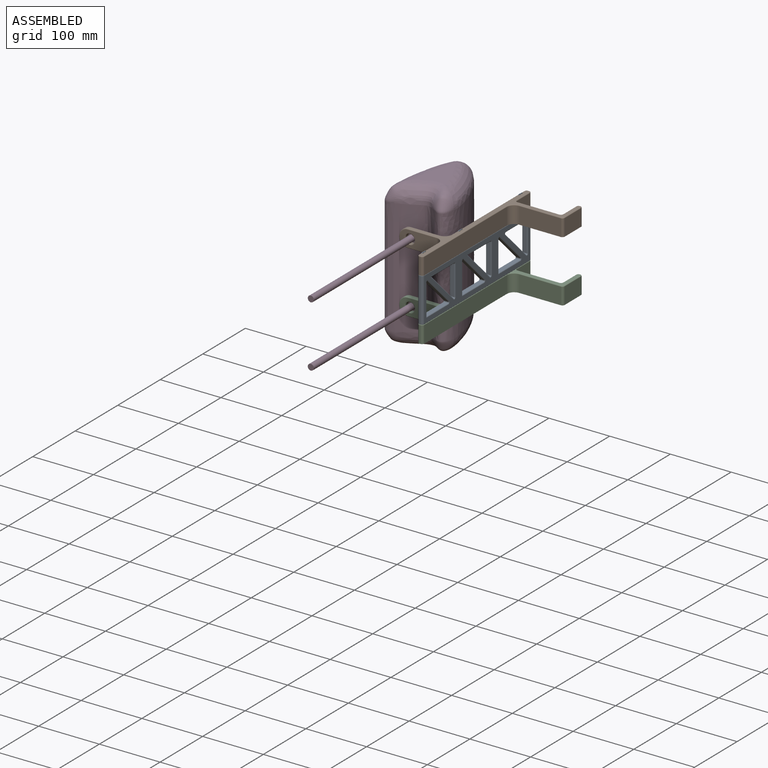
[diagram: assembled view]
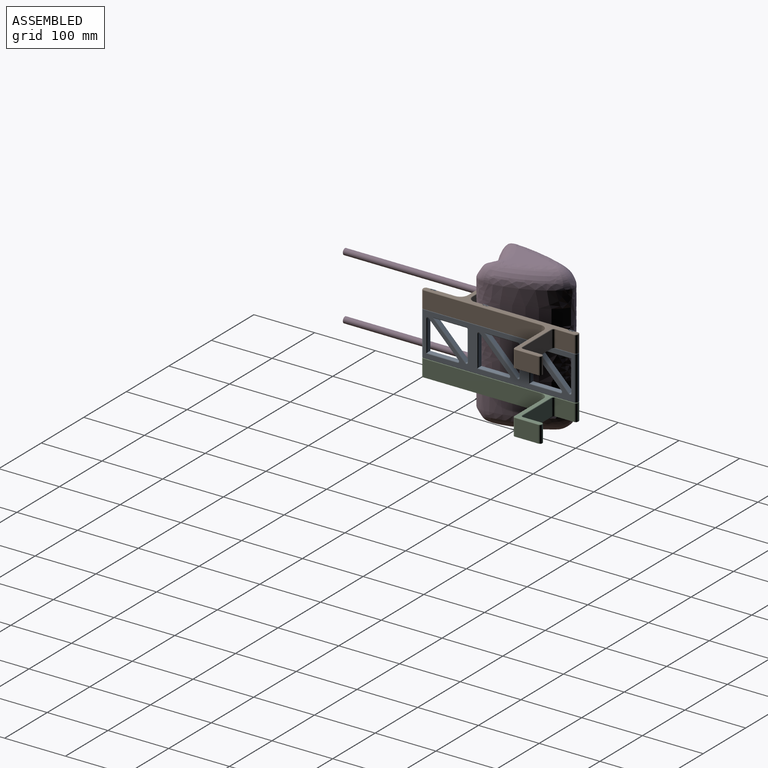
[diagram: assembled view, second angle]
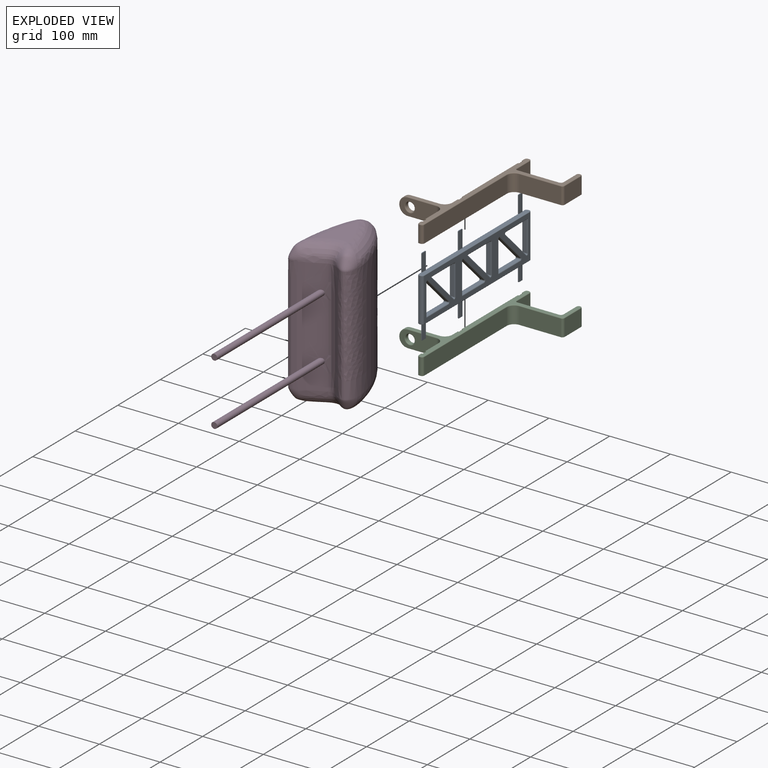
[diagram: exploded view]
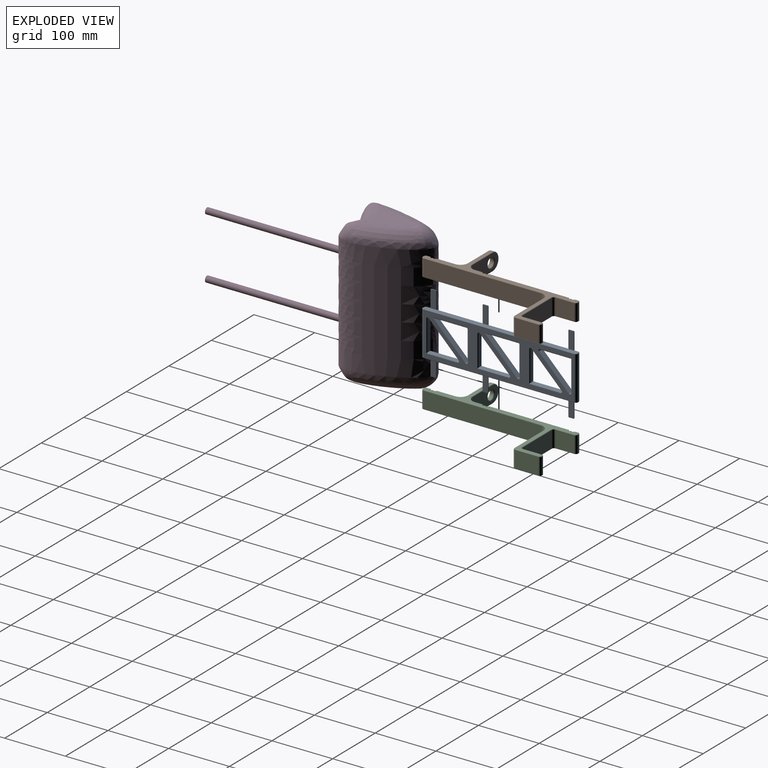
[diagram: exploded view, second angle]
ASSEMBLY  parts=4 mates=3
PART A: 157 faces, bbox 9.9x256.4x130.2 mm
  f0: plane 71.5x1.65mm, normal (0,1,0), area 118mm2, adj f48,f51,f58,f67
  f1: plane 248.16x130.18mm, normal (-1,0,0), area 8932.3mm2, adj f5,f6,f8,f9,f10,f11,f13,f14
  f2: plane 71.5x1.65mm, normal (0,-1,0), area 118mm2, adj f49,f50,f54,f63
  f3: plane 248.16x71.5mm, normal (1,0,0), area 7265.8mm2, adj f50,f51,f56,f65,f85,f86,f87,f88
  f4: plane 254.25x7.75mm, normal (0,0,1), area 1947.8mm2, adj f10,f11,f12,f18,f19,f20,f26,f27
  f5: plane 254.25x8.51mm, normal (0,0,-1), area 2006.3mm2, adj f1,f7,f8,f9,f15,f16,f17,f23
  f6: plane 7.62x1.27mm, normal (0,0,-1), area 9.7mm2, adj f1,f7,f81,f82
  f7: plane 28.58x9.14mm, normal (1,0,0), area 261mm2, adj f5,f6,f8,f9,f81,f82
  f8: plane 28.58x1.27mm, normal (0,-1,0), area 35.4mm2, adj f1,f5,f7,f72,f81
  f9: plane 28.58x1.27mm, normal (0,1,0), area 35.4mm2, adj f1,f5,f7,f69,f82
  f10: plane 28.58x1.27mm, normal (0,1,0), area 35.4mm2, adj f1,f4,f12,f60,f84
  f11: plane 28.58x1.27mm, normal (0,-1,0), area 35.4mm2, adj f1,f4,f12,f71,f83
  f12: plane 28.58x9.14mm, normal (1,0,0), area 261mm2, adj f4,f10,f11,f13,f83,f84
  f13: plane 7.62x1.27mm, normal (0,0,1), area 9.7mm2, adj f1,f12,f83,f84
  f14: plane 7.62x1.27mm, normal (0,0,-1), area 9.7mm2, adj f1,f15,f77,f78
  f15: plane 28.58x9.14mm, normal (1,0,0), area 261mm2, adj f5,f14,f16,f17,f77,f78
  f16: plane 28.58x1.27mm, normal (0,-1,0), area 35.4mm2, adj f1,f5,f15,f61,f77
  f17: plane 27.81x1.27mm, normal (0,1,0), area 35.3mm2, adj f1,f5,f15,f78
  f18: plane 28.58x1.27mm, normal (0,1,0), area 35.4mm2, adj f1,f4,f20,f70,f80
  f19: plane 28.58x1.27mm, normal (0,-1,0), area 35.4mm2, adj f1,f4,f20,f52,f79
  f20: plane 28.58x9.14mm, normal (1,0,0), area 261mm2, adj f4,f18,f19,f21,f79,f80
  f21: plane 7.62x1.27mm, normal (0,0,1), area 9.7mm2, adj f1,f20,f79,f80
  f22: plane 7.62x1.27mm, normal (0,0,-1), area 9.7mm2, adj f1,f23,f73,f74
  f23: plane 28.58x9.14mm, normal (1,0,0), area 261mm2, adj f5,f22,f24,f25,f73,f74
  f24: plane 27.81x1.27mm, normal (0,-1,0), area 35.3mm2, adj f1,f5,f23,f73
  f25: plane 28.58x1.27mm, normal (0,1,0), area 35.4mm2, adj f1,f5,f23,f72,f74
  f26: plane 28.58x1.27mm, normal (0,1,0), area 35.4mm2, adj f1,f4,f28,f71,f76
  f27: plane 28.58x1.27mm, normal (0,-1,0), area 35.4mm2, adj f1,f4,f28,f70,f75
  f28: plane 28.58x9.14mm, normal (1,0,0), area 261mm2, adj f4,f26,f27,f29,f75,f76
  f29: plane 7.62x1.27mm, normal (0,0,1), area 9.7mm2, adj f1,f28,f75,f76
  f30: plane 49.03x49.03mm, normal (0,0.71,0.71), area 431.5mm2, adj f147,f149,f152,f153
  f31: plane 50.55x6.22mm, normal (0,-1,0), area 314.6mm2, adj f32,f145,f149,f154
  f32: plane 50.55x6.22mm, normal (0,0,-1), area 314.6mm2, adj f31,f148,f153,f156
  f33: plane 50.55x6.22mm, normal (0,0,1), area 314.6mm2, adj f35,f136,f141,f144
  f34: plane 49.03x49.03mm, normal (0,-0.71,-0.71), area 431.5mm2, adj f135,f137,f140,f141
  f35: plane 50.55x6.22mm, normal (0,1,0), area 314.6mm2, adj f33,f133,f137,f142
  f36: plane 50.55x6.22mm, normal (0,0,1), area 314.6mm2, adj f38,f124,f129,f132
  f37: plane 49.03x49.03mm, normal (0,-0.71,-0.71), area 431.5mm2, adj f123,f125,f128,f129
  f38: plane 50.55x6.22mm, normal (0,1,0), area 314.6mm2, adj f36,f121,f125,f130
  f39: plane 51.63x51.63mm, normal (0,0.71,0.71), area 454.4mm2, adj f41,f112,f117,f120
  f40: plane 49.03x6.22mm, normal (0,-1,0), area 305.1mm2, adj f111,f113,f116,f117
  f41: plane 52.71x6.22mm, normal (0,0,-1), area 328mm2, adj f39,f109,f113,f118
  f42: plane 50.55x6.22mm, normal (0,0,1), area 314.6mm2, adj f44,f100,f105,f108
  f43: plane 49.03x49.03mm, normal (0,-0.71,-0.71), area 431.5mm2, adj f99,f101,f104,f105
  f44: plane 50.55x6.22mm, normal (0,1,0), area 314.6mm2, adj f42,f97,f101,f106
  f45: plane 51.63x51.63mm, normal (0,0.71,0.71), area 454.4mm2, adj f47,f88,f93,f96
  f46: plane 49.03x6.22mm, normal (0,-1,0), area 305.1mm2, adj f87,f89,f92,f93
  f47: plane 52.71x6.22mm, normal (0,0,-1), area 328mm2, adj f45,f85,f89,f94
  f48: cylinder r=3.81mm len=71.5mm, axis (0,0,1), area 427.9mm2, adj f0,f1,f59,f68
  f49: cylinder r=3.81mm len=71.5mm, axis (0,0,-1), area 427.9mm2, adj f1,f2,f53,f62
  f50: cylinder r=3.81mm len=71.5mm, axis (0,0,1), area 427.9mm2, adj f2,f3,f55,f64
  f51: cylinder r=3.81mm len=71.5mm, axis (0,0,-1), area 427.9mm2, adj f0,f3,f57,f66
  f52: cylinder r=0.76mm len=5.89mm, axis (0,1,0), area 7.1mm2, adj f1,f4,f19,f53
  f53: torus R=3.05mm, axis (0,0,1), area 6.6mm2, adj f4,f49,f52,f54
  f54: cylinder r=0.76mm len=1.65mm, axis (-1,0,0), area 2mm2, adj f2,f4,f53,f55
  f55: torus R=3.05mm, axis (0,0,1), area 6.6mm2, adj f4,f50,f54,f56
  f56: cylinder r=0.76mm len=248.16mm, axis (0,-1,0), area 297mm2, adj f3,f4,f55,f57
  f57: torus R=3.05mm, axis (0,0,1), area 6.6mm2, adj f4,f51,f56,f58
  f58: cylinder r=0.76mm len=1.65mm, axis (1,0,0), area 2mm2, adj f0,f4,f57,f59
  f59: torus R=3.05mm, axis (0,0,1), area 6.6mm2, adj f4,f48,f58,f60
  f60: cylinder r=0.76mm len=5.89mm, axis (0,1,0), area 7.1mm2, adj f1,f4,f10,f59
  f61: cylinder r=0.76mm len=5.89mm, axis (0,-1,0), area 7.1mm2, adj f1,f5,f16,f62
  f62: torus R=3.05mm, axis (0,0,1), area 6.6mm2, adj f5,f49,f61,f63
  f63: cylinder r=0.76mm len=1.65mm, axis (1,0,0), area 2mm2, adj f2,f5,f62,f64
  f64: torus R=3.05mm, axis (0,0,1), area 6.6mm2, adj f5,f50,f63,f65
  f65: cylinder r=0.76mm len=248.16mm, axis (0,1,0), area 297mm2, adj f3,f5,f64,f66
  f66: torus R=3.05mm, axis (0,0,1), area 6.6mm2, adj f5,f51,f65,f67
  f67: cylinder r=0.76mm len=1.65mm, axis (-1,0,0), area 2mm2, adj f0,f5,f66,f68
  f68: torus R=3.05mm, axis (0,0,1), area 6.6mm2, adj f5,f48,f67,f69
  f69: cylinder r=0.76mm len=5.89mm, axis (0,-1,0), area 7.1mm2, adj f1,f5,f9,f68
  f70: cylinder r=0.76mm len=76.73mm, axis (0,1,0), area 91.8mm2, adj f1,f4,f18,f27
  f71: cylinder r=0.76mm len=132.21mm, axis (0,1,0), area 158.2mm2, adj f1,f4,f11,f26
  f72: cylinder r=0.76mm len=132.21mm, axis (0,-1,0), area 158.2mm2, adj f1,f5,f8,f25
  f73: cylinder r=0.76mm len=1.27mm, axis (1,0,0), area 1.5mm2, adj f1,f22,f23,f24
  f74: cylinder r=0.76mm len=1.27mm, axis (-1,0,0), area 1.5mm2, adj f1,f22,f23,f25
  f75: cylinder r=0.76mm len=1.27mm, axis (-1,0,0), area 1.5mm2, adj f1,f27,f28,f29
  f76: cylinder r=0.76mm len=1.27mm, axis (1,0,0), area 1.5mm2, adj f1,f26,f28,f29
  f77: cylinder r=0.76mm len=1.27mm, axis (1,0,0), area 1.5mm2, adj f1,f14,f15,f16
  f78: cylinder r=0.76mm len=1.27mm, axis (-1,0,0), area 1.5mm2, adj f1,f14,f15,f17
  f79: cylinder r=0.76mm len=1.27mm, axis (-1,0,0), area 1.5mm2, adj f1,f19,f20,f21
  f80: cylinder r=0.76mm len=1.27mm, axis (1,0,0), area 1.5mm2, adj f1,f18,f20,f21
  f81: cylinder r=0.76mm len=1.27mm, axis (1,0,0), area 1.5mm2, adj f1,f6,f7,f8
  f82: cylinder r=0.76mm len=1.27mm, axis (-1,0,0), area 1.5mm2, adj f1,f6,f7,f9
  f83: cylinder r=0.76mm len=1.27mm, axis (-1,0,0), area 1.5mm2, adj f1,f11,f12,f13
  f84: cylinder r=0.76mm len=1.27mm, axis (1,0,0), area 1.5mm2, adj f1,f10,f12,f13
  f85: cylinder r=1.52mm len=56.38mm, axis (0,1,0), area 129.4mm2, adj f3,f47,f86,f88
  f86: torus R=3.05mm, axis (1,0,0), area 7.8mm2, adj f3,f85,f87,f89
  f87: cylinder r=1.52mm len=49.03mm, axis (0,0,-1), area 117.4mm2, adj f3,f46,f86,f90
  f88: cylinder r=1.52mm len=55.31mm, axis (0,-0.71,0.71), area 178mm2, adj f3,f45,f85,f90
  f89: cylinder r=1.52mm len=6.22mm, axis (-1,0,0), area 14.9mm2, adj f46,f47,f86,f91
  f90: torus R=3.05mm, axis (1,0,0), area 11.7mm2, adj f3,f87,f88,f93
  f91: torus R=3.05mm, axis (1,0,0), area 7.8mm2, adj f1,f89,f92,f94
  f92: cylinder r=1.52mm len=49.03mm, axis (0,0,1), area 117.4mm2, adj f1,f46,f91,f95
  f93: cylinder r=1.52mm len=6.22mm, axis (-1,0,0), area 22.3mm2, adj f45,f46,f90,f95
  f94: cylinder r=1.52mm len=56.38mm, axis (0,-1,0), area 129.4mm2, adj f1,f47,f91,f96
  f95: torus R=3.05mm, axis (1,0,0), area 11.7mm2, adj f1,f92,f93,f96
  f96: cylinder r=1.52mm len=55.31mm, axis (0,0.71,-0.71), area 178mm2, adj f1,f45,f94,f95
  f97: cylinder r=1.52mm len=52.07mm, axis (0,0,1), area 122.3mm2, adj f3,f44,f98,f100
  f98: torus R=3.05mm, axis (1,0,0), area 11.7mm2, adj f3,f97,f99,f101
  f99: cylinder r=1.52mm len=50.1mm, axis (0,0.71,-0.71), area 166mm2, adj f3,f43,f98,f102
  f100: cylinder r=1.52mm len=52.07mm, axis (0,-1,0), area 122.3mm2, adj f3,f42,f97,f102
  f101: cylinder r=1.52mm len=6.22mm, axis (-1,0,0), area 22.3mm2, adj f43,f44,f98,f103
  f102: torus R=3.05mm, axis (1,0,0), area 11.7mm2, adj f3,f99,f100,f105
  f103: torus R=3.05mm, axis (1,0,0), area 11.7mm2, adj f1,f101,f104,f106
  f104: cylinder r=1.52mm len=50.1mm, axis (0,-0.71,0.71), area 166mm2, adj f1,f43,f103,f107
  f105: cylinder r=1.52mm len=6.22mm, axis (-1,0,0), area 22.3mm2, adj f42,f43,f102,f107
  f106: cylinder r=1.52mm len=52.07mm, axis (0,0,-1), area 122.3mm2, adj f1,f44,f103,f108
  f107: torus R=3.05mm, axis (1,0,0), area 11.7mm2, adj f1,f104,f105,f108
  f108: cylinder r=1.52mm len=52.07mm, axis (0,1,0), area 122.3mm2, adj f1,f42,f106,f107
  f109: cylinder r=1.52mm len=56.38mm, axis (0,1,0), area 129.4mm2, adj f3,f41,f110,f112
  f110: torus R=3.05mm, axis (1,0,0), area 7.8mm2, adj f3,f109,f111,f113
  f111: cylinder r=1.52mm len=49.03mm, axis (0,0,-1), area 117.4mm2, adj f3,f40,f110,f114
  f112: cylinder r=1.52mm len=55.31mm, axis (0,-0.71,0.71), area 178mm2, adj f3,f39,f109,f114
  f113: cylinder r=1.52mm len=6.22mm, axis (-1,0,0), area 14.9mm2, adj f40,f41,f110,f115
  f114: torus R=3.05mm, axis (1,0,0), area 11.7mm2, adj f3,f111,f112,f117
  f115: torus R=3.05mm, axis (1,0,0), area 7.8mm2, adj f1,f113,f116,f118
  f116: cylinder r=1.52mm len=49.03mm, axis (0,0,1), area 117.4mm2, adj f1,f40,f115,f119
  f117: cylinder r=1.52mm len=6.22mm, axis (-1,0,0), area 22.3mm2, adj f39,f40,f114,f119
  f118: cylinder r=1.52mm len=56.38mm, axis (0,-1,0), area 129.4mm2, adj f1,f41,f115,f120
  f119: torus R=3.05mm, axis (1,0,0), area 11.7mm2, adj f1,f116,f117,f120
  f120: cylinder r=1.52mm len=55.31mm, axis (0,0.71,-0.71), area 178mm2, adj f1,f39,f118,f119
  f121: cylinder r=1.52mm len=52.07mm, axis (0,0,1), area 122.3mm2, adj f3,f38,f122,f124
  f122: torus R=3.05mm, axis (1,0,0), area 11.7mm2, adj f3,f121,f123,f125
  f123: cylinder r=1.52mm len=50.1mm, axis (0,0.71,-0.71), area 166mm2, adj f3,f37,f122,f126
  f124: cylinder r=1.52mm len=52.07mm, axis (0,-1,0), area 122.3mm2, adj f3,f36,f121,f126
  f125: cylinder r=1.52mm len=6.22mm, axis (-1,0,0), area 22.3mm2, adj f37,f38,f122,f127
  f126: torus R=3.05mm, axis (1,0,0), area 11.7mm2, adj f3,f123,f124,f129
  f127: torus R=3.05mm, axis (1,0,0), area 11.7mm2, adj f1,f125,f128,f130
  f128: cylinder r=1.52mm len=50.1mm, axis (0,-0.71,0.71), area 166mm2, adj f1,f37,f127,f131
  f129: cylinder r=1.52mm len=6.22mm, axis (-1,0,0), area 22.3mm2, adj f36,f37,f126,f131
  f130: cylinder r=1.52mm len=52.07mm, axis (0,0,-1), area 122.3mm2, adj f1,f38,f127,f132
  f131: torus R=3.05mm, axis (1,0,0), area 11.7mm2, adj f1,f128,f129,f132
  f132: cylinder r=1.52mm len=52.07mm, axis (0,1,0), area 122.3mm2, adj f1,f36,f130,f131
  f133: cylinder r=1.52mm len=52.07mm, axis (0,0,1), area 122.3mm2, adj f3,f35,f134,f136
  f134: torus R=3.05mm, axis (1,0,0), area 11.7mm2, adj f3,f133,f135,f137
  f135: cylinder r=1.52mm len=50.1mm, axis (0,0.71,-0.71), area 166mm2, adj f3,f34,f134,f138
  f136: cylinder r=1.52mm len=52.07mm, axis (0,-1,0), area 122.3mm2, adj f3,f33,f133,f138
  f137: cylinder r=1.52mm len=6.22mm, axis (-1,0,0), area 22.3mm2, adj f34,f35,f134,f139
  f138: torus R=3.05mm, axis (1,0,0), area 11.7mm2, adj f3,f135,f136,f141
  f139: torus R=3.05mm, axis (1,0,0), area 11.7mm2, adj f1,f137,f140,f142
  f140: cylinder r=1.52mm len=50.1mm, axis (0,-0.71,0.71), area 166mm2, adj f1,f34,f139,f143
  f141: cylinder r=1.52mm len=6.22mm, axis (-1,0,0), area 22.3mm2, adj f33,f34,f138,f143
  f142: cylinder r=1.52mm len=52.07mm, axis (0,0,-1), area 122.3mm2, adj f1,f35,f139,f144
  f143: torus R=3.05mm, axis (1,0,0), area 11.7mm2, adj f1,f140,f141,f144
  f144: cylinder r=1.52mm len=52.07mm, axis (0,1,0), area 122.3mm2, adj f1,f33,f142,f143
  f145: cylinder r=1.52mm len=52.07mm, axis (0,0,-1), area 122.3mm2, adj f3,f31,f146,f148
  f146: torus R=3.05mm, axis (1,0,0), area 11.7mm2, adj f3,f145,f147,f149
  f147: cylinder r=1.52mm len=50.1mm, axis (0,-0.71,0.71), area 166mm2, adj f3,f30,f146,f150
  f148: cylinder r=1.52mm len=52.07mm, axis (0,1,0), area 122.3mm2, adj f3,f32,f145,f150
  f149: cylinder r=1.52mm len=6.22mm, axis (-1,0,0), area 22.3mm2, adj f30,f31,f146,f151
  f150: torus R=3.05mm, axis (1,0,0), area 11.7mm2, adj f3,f147,f148,f153
  f151: torus R=3.05mm, axis (1,0,0), area 11.7mm2, adj f1,f149,f152,f154
  f152: cylinder r=1.52mm len=50.1mm, axis (0,0.71,-0.71), area 166mm2, adj f1,f30,f151,f155
  f153: cylinder r=1.52mm len=6.22mm, axis (-1,0,0), area 22.3mm2, adj f30,f32,f150,f155
  f154: cylinder r=1.52mm len=52.07mm, axis (0,0,1), area 122.3mm2, adj f1,f31,f151,f156
  f155: torus R=3.05mm, axis (1,0,0), area 11.7mm2, adj f1,f152,f153,f156
  f156: cylinder r=1.52mm len=52.07mm, axis (0,-1,0), area 122.3mm2, adj f1,f32,f154,f155
PART B: 118 faces, bbox 168.2x30.9x256.4 mm
  f0: plane 27.56x5.72mm, normal (-1,0,0), area 157.5mm2, adj f4,f36,f53,f79
  f1: plane 131.83x27.56mm, normal (-1,0,0), area 3633mm2, adj f4,f29,f37,f71
  f2: plane 27.56x5.72mm, normal (-1,0,0), area 157.5mm2, adj f4,f23,f46,f99
  f3: plane 253.75x151.46mm, normal (0,-1,0), area 2966.1mm2, adj f20,f61,f62,f63,f64,f65,f66,f67
  f4: plane 255.78x152.48mm, normal (0,1,0), area 3667.1mm2, adj f0,f1,f2,f5,f6,f7,f8,f9
  f5: plane 38.48x27.56mm, normal (1,0,0), area 1060.5mm2, adj f4,f48,f54,f91
  f6: plane 27.56x0.38mm, normal (0,0,1), area 10.5mm2, adj f4,f48,f49,f89
  f7: plane 30.48x27.56mm, normal (-1,0,0), area 840mm2, adj f4,f49,f50,f87
  f8: plane 68.58x27.56mm, normal (0,0,1), area 1890mm2, adj f4,f50,f51,f85
  f9: plane 30.48x27.56mm, normal (1,0,0), area 840mm2, adj f4,f51,f52,f83
  f10: plane 27.56x1.65mm, normal (0,0,1), area 45.5mm2, adj f4,f52,f53,f81
  f11: plane 26.54x13.4mm, normal (-1,0,0), area 355.7mm2, adj f30,f43,f55,f63
  f12: plane 60.26x26.54mm, normal (0,0,1), area 1268.7mm2, adj f43,f57,f58,f59,f60,f61,f117
  f13: plane 5.97x0.03mm, normal (-1,0,0), area 0.2mm2, adj f19,f20,f59,f111
  f14: plane 60.26x26.54mm, normal (0,0,-1), area 1268.7mm2, adj f44,f109,f110,f111,f112,f113,f116
  f15: plane 30.93x26.54mm, normal (-1,0,0), area 820.9mm2, adj f22,f44,f107,f115
  f16: plane 27.56x1.65mm, normal (0,0,-1), area 45.5mm2, adj f4,f46,f47,f97
  f17: plane 193.87x27.56mm, normal (1,0,0), area 5342.8mm2, adj f4,f45,f47,f95
  f18: plane 68.39x27.56mm, normal (0,0,-1), area 1884.8mm2, adj f4,f45,f54,f93
  f19: cylinder r=14.27mm len=14.28mm, axis (0,0,-1), area 133.8mm2, adj f4,f13,f58,f112
  f20: cylinder r=14.27mm len=14.28mm, axis (0,0,1), area 133.8mm2, adj f3,f13,f60,f110
  f21: cylinder r=7.49mm len=14.99mm, axis (0,0,1), area 233.2mm2, adj f116,f117
  f22: plane 27.56x1.27mm, normal (0,0,-1), area 34.8mm2, adj f4,f15,f28,f106,f115
  f23: plane 27.56x1.27mm, normal (0,0,1), area 35mm2, adj f2,f4,f24,f100
  f24: plane 27.56x1.27mm, normal (-1,0,0), area 35mm2, adj f4,f23,f25,f101
  f25: cylinder r=1.27mm len=27.56mm, axis (0,-1,0), area 110mm2, adj f4,f24,f26,f102
  f26: plane 27.56x1.91mm, normal (-1,0,0), area 52.5mm2, adj f4,f25,f27,f103
  f27: cylinder r=1.27mm len=27.56mm, axis (0,-1,0), area 110mm2, adj f4,f26,f28,f104
  f28: plane 27.56x1.27mm, normal (-1,0,0), area 35mm2, adj f4,f22,f27,f105
  f29: plane 27.56x1.27mm, normal (0,0,-1), area 35mm2, adj f1,f4,f35,f70
  f30: plane 27.56x1.27mm, normal (0,0,1), area 34.8mm2, adj f4,f11,f31,f55,f64
  f31: plane 27.56x1.27mm, normal (-1,0,0), area 35mm2, adj f4,f30,f32,f65
  f32: cylinder r=1.27mm len=27.56mm, axis (0,-1,0), area 110mm2, adj f4,f31,f33,f66
  f33: plane 27.56x1.91mm, normal (-1,0,0), area 52.5mm2, adj f4,f32,f34,f67
  f34: cylinder r=1.27mm len=27.56mm, axis (0,-1,0), area 110mm2, adj f4,f33,f35,f68
  f35: plane 27.56x1.27mm, normal (-1,0,0), area 35mm2, adj f4,f29,f34,f69
  f36: plane 27.56x1.27mm, normal (0,0,-1), area 35mm2, adj f0,f4,f42,f78
  f37: plane 27.56x1.27mm, normal (0,0,1), area 35mm2, adj f1,f4,f38,f72
  f38: plane 27.56x1.27mm, normal (-1,0,0), area 35mm2, adj f4,f37,f39,f73
  f39: cylinder r=1.27mm len=27.56mm, axis (0,-1,0), area 110mm2, adj f4,f38,f40,f74
  f40: plane 27.56x1.91mm, normal (-1,0,0), area 52.5mm2, adj f4,f39,f41,f75
  f41: cylinder r=1.27mm len=27.56mm, axis (0,-1,0), area 110mm2, adj f4,f40,f42,f76
  f42: plane 27.56x1.27mm, normal (-1,0,0), area 35mm2, adj f4,f36,f41,f77
  f43: cylinder r=12mm len=26.54mm, axis (0,-1,0), area 500.3mm2, adj f11,f12,f56,f62
  f44: cylinder r=12mm len=26.54mm, axis (0,1,0), area 500.3mm2, adj f14,f15,f108,f114
  f45: cylinder r=12mm len=27.56mm, axis (0,1,0), area 519.5mm2, adj f4,f17,f18,f94
  f46: cylinder r=3.81mm len=27.56mm, axis (0,1,0), area 164.9mm2, adj f2,f4,f16,f98
  f47: cylinder r=3.81mm len=27.56mm, axis (0,-1,0), area 164.9mm2, adj f4,f16,f17,f96
  f48: cylinder r=3.81mm len=27.56mm, axis (0,1,0), area 164.9mm2, adj f4,f5,f6,f90
  f49: cylinder r=3.81mm len=27.56mm, axis (0,1,0), area 164.9mm2, adj f4,f6,f7,f88
  f50: cylinder r=3.81mm len=27.56mm, axis (0,-1,0), area 164.9mm2, adj f4,f7,f8,f86
  f51: cylinder r=3.81mm len=27.56mm, axis (0,-1,0), area 164.9mm2, adj f4,f8,f9,f84
  f52: cylinder r=3.81mm len=27.56mm, axis (0,1,0), area 164.9mm2, adj f4,f9,f10,f82
  f53: cylinder r=3.81mm len=27.56mm, axis (0,-1,0), area 164.9mm2, adj f0,f4,f10,f80
  f54: cylinder r=3.81mm len=27.56mm, axis (0,1,0), area 164.9mm2, adj f4,f5,f18,f92
  f55: cylinder r=1.02mm len=13.4mm, axis (0,0,-1), area 21.4mm2, adj f4,f11,f30,f56
  f56: torus R=13.02mm, axis (0,-1,0), area 31mm2, adj f4,f43,f55,f57
  f57: cylinder r=1.02mm len=47mm, axis (-1,0,0), area 75mm2, adj f4,f12,f56,f58
  f58: torus R=13.26mm, axis (0,0,1), area 34.9mm2, adj f12,f19,f57,f59
  f59: cylinder r=1.02mm len=1.02mm, axis (0,-1,0), area 0mm2, adj f12,f13,f58,f60
  f60: torus R=13.26mm, axis (0,0,1), area 34.9mm2, adj f12,f20,f59,f61
  f61: cylinder r=1.02mm len=47mm, axis (1,0,0), area 75mm2, adj f3,f12,f60,f62
  f62: torus R=13.02mm, axis (0,-1,0), area 31mm2, adj f3,f43,f61,f63
  f63: cylinder r=1.02mm len=13.4mm, axis (0,0,1), area 20.8mm2, adj f3,f11,f62,f64
  f64: cylinder r=1.02mm len=2.29mm, axis (-1,0,0), area 2mm2, adj f3,f30,f63,f65
  f65: cylinder r=1.02mm len=2.29mm, axis (0,0,-1), area 2.1mm2, adj f3,f31,f64,f66
  f66: torus R=2.29mm, axis (0,-1,0), area 7mm2, adj f3,f32,f65,f67
  f67: cylinder r=1.02mm len=1.91mm, axis (0,0,-1), area 2.1mm2, adj f3,f33,f66,f68
  f68: torus R=2.29mm, axis (0,-1,0), area 7mm2, adj f3,f34,f67,f69
  f69: cylinder r=1.02mm len=2.29mm, axis (0,0,-1), area 2.1mm2, adj f3,f35,f68,f70
  f70: cylinder r=1.02mm len=2.29mm, axis (1,0,0), area 2mm2, adj f3,f29,f69,f71
  f71: cylinder r=1.02mm len=131.83mm, axis (0,0,1), area 209.2mm2, adj f1,f3,f70,f72
  f72: cylinder r=1.02mm len=2.29mm, axis (-1,0,0), area 2mm2, adj f3,f37,f71,f73
  f73: cylinder r=1.02mm len=2.29mm, axis (0,0,-1), area 2.1mm2, adj f3,f38,f72,f74
  f74: torus R=2.29mm, axis (0,-1,0), area 7mm2, adj f3,f39,f73,f75
  f75: cylinder r=1.02mm len=1.91mm, axis (0,0,-1), area 2.1mm2, adj f3,f40,f74,f76
  f76: torus R=2.29mm, axis (0,-1,0), area 7mm2, adj f3,f41,f75,f77
  f77: cylinder r=1.02mm len=2.29mm, axis (0,0,-1), area 2.1mm2, adj f3,f42,f76,f78
  f78: cylinder r=1.02mm len=2.29mm, axis (1,0,0), area 2mm2, adj f3,f36,f77,f79
  f79: cylinder r=1.02mm len=5.72mm, axis (0,0,1), area 8.5mm2, adj f0,f3,f78,f80
  f80: torus R=2.79mm, axis (0,-1,0), area 8.6mm2, adj f3,f53,f79,f81
  f81: cylinder r=1.02mm len=1.65mm, axis (1,0,0), area 2.6mm2, adj f3,f10,f80,f82
  f82: torus R=2.79mm, axis (0,-1,0), area 8.6mm2, adj f3,f52,f81,f83
  f83: cylinder r=1.02mm len=30.48mm, axis (0,0,-1), area 48.6mm2, adj f3,f9,f82,f84
  f84: torus R=4.83mm, axis (0,-1,0), area 10.5mm2, adj f3,f51,f83,f85
  f85: cylinder r=1.02mm len=68.58mm, axis (1,0,0), area 109.4mm2, adj f3,f8,f84,f86
  f86: torus R=4.83mm, axis (0,-1,0), area 10.5mm2, adj f3,f50,f85,f87
  f87: cylinder r=1.02mm len=30.48mm, axis (0,0,1), area 48.6mm2, adj f3,f7,f86,f88
  f88: torus R=2.79mm, axis (0,-1,0), area 8.6mm2, adj f3,f49,f87,f89
  f89: cylinder r=1.02mm len=1.02mm, axis (1,0,0), area 0.6mm2, adj f3,f6,f88,f90
  f90: torus R=2.79mm, axis (0,-1,0), area 8.6mm2, adj f3,f48,f89,f91
  f91: cylinder r=1.02mm len=38.48mm, axis (0,0,-1), area 61.4mm2, adj f3,f5,f90,f92
  f92: torus R=2.79mm, axis (0,-1,0), area 8.6mm2, adj f3,f54,f91,f93
  f93: cylinder r=1.02mm len=68.39mm, axis (-1,0,0), area 109.1mm2, adj f3,f18,f92,f94
  f94: torus R=13.02mm, axis (0,-1,0), area 31mm2, adj f3,f45,f93,f95
  f95: cylinder r=1.02mm len=193.87mm, axis (0,0,-1), area 309.4mm2, adj f3,f17,f94,f96
  f96: torus R=2.79mm, axis (0,-1,0), area 8.6mm2, adj f3,f47,f95,f97
  f97: cylinder r=1.02mm len=1.65mm, axis (-1,0,0), area 2.6mm2, adj f3,f16,f96,f98
  f98: torus R=2.79mm, axis (0,-1,0), area 8.6mm2, adj f3,f46,f97,f99
  f99: cylinder r=1.02mm len=5.72mm, axis (0,0,1), area 8.5mm2, adj f2,f3,f98,f100
  f100: cylinder r=1.02mm len=2.29mm, axis (-1,0,0), area 2mm2, adj f3,f23,f99,f101
  f101: cylinder r=1.02mm len=2.29mm, axis (0,0,-1), area 2.1mm2, adj f3,f24,f100,f102
  f102: torus R=2.29mm, axis (0,-1,0), area 7mm2, adj f3,f25,f101,f103
  f103: cylinder r=1.02mm len=1.91mm, axis (0,0,-1), area 2.1mm2, adj f3,f26,f102,f104
  f104: torus R=2.29mm, axis (0,-1,0), area 7mm2, adj f3,f27,f103,f105
  f105: cylinder r=1.02mm len=2.29mm, axis (0,0,-1), area 2.1mm2, adj f3,f28,f104,f106
  f106: cylinder r=1.02mm len=2.29mm, axis (1,0,0), area 2mm2, adj f3,f22,f105,f107
  f107: cylinder r=1.02mm len=30.93mm, axis (0,0,1), area 48.8mm2, adj f3,f15,f106,f108
  f108: torus R=13.02mm, axis (0,-1,0), area 31mm2, adj f3,f44,f107,f109
  f109: cylinder r=1.02mm len=47mm, axis (-1,0,0), area 75mm2, adj f3,f14,f108,f110
  f110: torus R=13.26mm, axis (0,0,-1), area 34.9mm2, adj f14,f20,f109,f111
  f111: cylinder r=1.02mm len=1.02mm, axis (0,-1,0), area 0mm2, adj f13,f14,f110,f112
  f112: torus R=13.26mm, axis (0,0,-1), area 34.9mm2, adj f14,f19,f111,f113
  f113: cylinder r=1.02mm len=47mm, axis (1,0,0), area 75mm2, adj f4,f14,f112,f114
  f114: torus R=13.02mm, axis (0,-1,0), area 31mm2, adj f4,f44,f113,f115
  f115: cylinder r=1.02mm len=30.93mm, axis (0,0,-1), area 49.4mm2, adj f4,f15,f22,f114
  f116: torus R=9.02mm, axis (0,0,-1), area 121mm2, adj f14,f21
  f117: torus R=9.02mm, axis (0,0,1), area 121mm2, adj f12,f21
PART C: same geometry as B
PART D: 19 faces, bbox 375.3x98.7x241.3 mm
  f0: extruded ~190.5x139.87mm, area 75639.7mm2, adj f3,f5,f7,f8,f9,f10,f11,f12
  f1: plane 76.33x45.97mm, normal (0,0,1), area 1817.9mm2, adj f13,f16,f17
  f2: plane 76.33x45.96mm, normal (0,0,-1), area 1817.9mm2, adj f7,f10,f11
  f3: cylinder r=5.02mm len=250.19mm, axis (-1,0,0), area 7885.9mm2, adj f0,f4
  f4: plane 10.03x10.03mm, normal (-1,0,0), area 79.1mm2, adj f3
  f5: cylinder r=5.02mm len=250.19mm, axis (-1,0,0), area 7885.9mm2, adj f0,f6
  f6: plane 10.03x10.03mm, normal (-1,0,0), area 79.1mm2, adj f5
  f7: bspline ~103.75x58.51mm, area 3637.5mm2, adj f0,f2,f8,f9
  f8: bspline ~32.2x31.47mm, area 1016.2mm2, adj f0,f7,f10
  f9: bspline ~34.71x26.85mm, area 765.6mm2, adj f0,f7,f11
  f10: bspline ~113.87x47.7mm, area 3901.6mm2, adj f0,f2,f8,f12
  f11: bspline ~76.82x44.67mm, area 2000.9mm2, adj f0,f2,f9,f12
  f12: bspline ~32.6x26.12mm, area 605.6mm2, adj f0,f10,f11
  f13: bspline ~104.91x59.03mm, area 3637.3mm2, adj f0,f1,f14,f15
  f14: bspline ~32.21x31.48mm, area 654.9mm2, adj f0,f13,f16
  f15: bspline ~34.71x26.82mm, area 782.8mm2, adj f0,f13,f17
  f16: bspline ~114.34x47.98mm, area 3900.4mm2, adj f0,f1,f14,f18
  f17: bspline ~76.8x44.63mm, area 2000.4mm2, adj f0,f1,f15,f18
  f18: bspline ~32.6x26.12mm, area 874mm2, adj f0,f16,f17
PLACE A t=(-27.12,-22.18,-9.77)mm fixed
PLACE B rot(axis=(-1,0,0),90deg) t=(-22.49,-80.09,41.03)mm
PLACE C rot(axis=(-1,0,0),90deg) t=(-22.49,-80.09,-60.57)mm
PLACE D rot(axis=(0,0,1),90deg) t=(-87.26,-85.92,-9.77)mm
MATE fastened C.f52 <-> A.f51  axis (0,0,1) through (-26.3,101.9,-46.29)mm
MATE slider C.f116 <-> D.f3  axis (0,1,0) through (-87.26,-81.61,-60.57)mm
MATE fastened A.f51 <-> B.f52  axis (0,0,1) through (-26.3,101.9,26.74)mm
